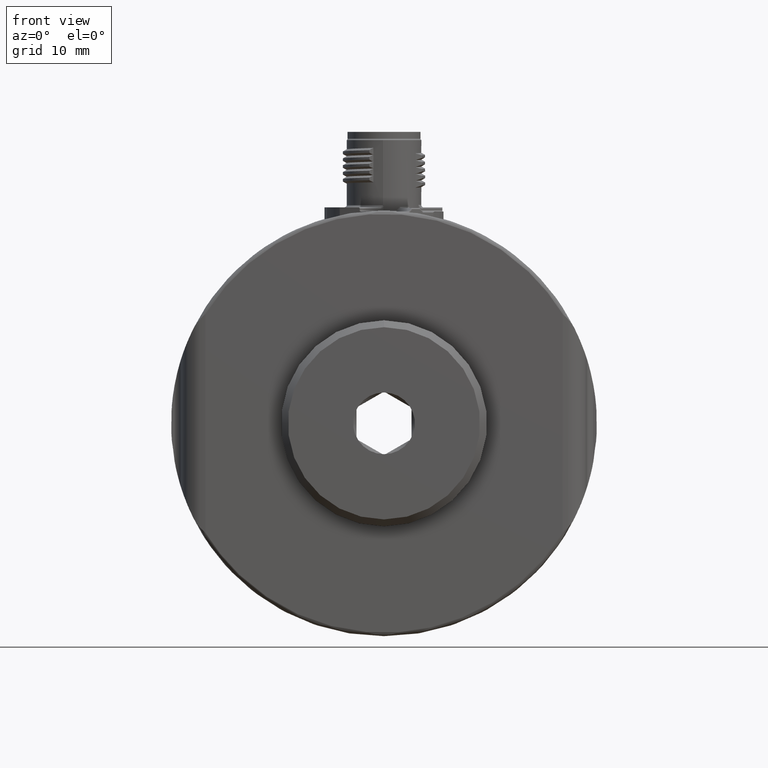
[diagram: clean part render]
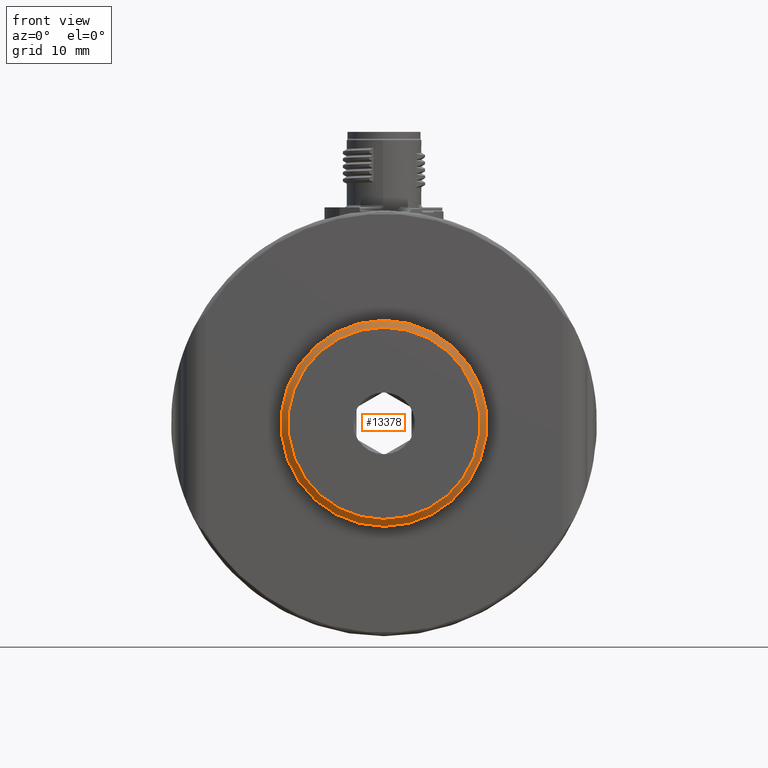
[diagram: same view with one face highlighted and labeled with its STEP entity id]
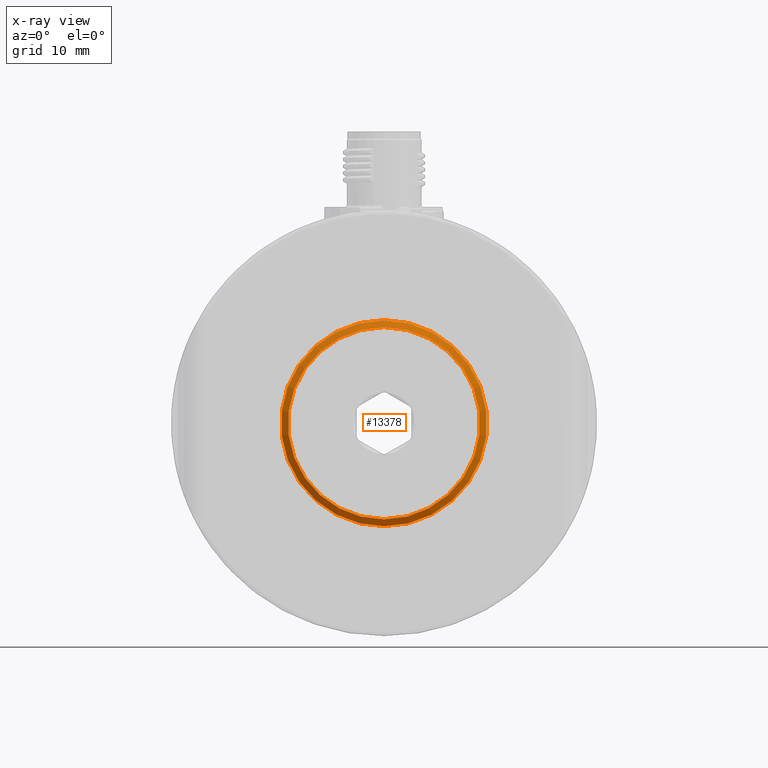
[diagram: x-ray of the same camera — body ghosted, the highlighted face saturated]
A machine part, front view. The second image highlights one B-rep face of the part: STEP entity #13378.
The next image is the same camera in x-ray: the body ghosted, the highlighted face saturated — about 0% of this face is hidden behind the body in this view.
In plain terms, the highlighted conical surface has half-angle 45 deg.
Its self-contained STEP definition (entity closure, byte-faithful):
#812 = VERTEX_POINT ( 'NONE', #7846 ) ;
#879 = DIRECTION ( 'NONE',  ( 0.000000000000000000, 0.000000000000000000, 1.000000000000000000 ) ) ;
#1279 = DIRECTION ( 'NONE',  ( -0.000000000000000000, 1.000000000000000000, 0.000000000000000000 ) ) ;
#1938 = EDGE_LOOP ( 'NONE', ( #14559 ) ) ;
#3206 = AXIS2_PLACEMENT_3D ( 'NONE', #12155, #17883, #879 ) ;
#5507 = DIRECTION ( 'NONE',  ( -0.000000000000000000, 1.000000000000000000, -0.000000000000000000 ) ) ;
#6879 = AXIS2_PLACEMENT_3D ( 'NONE', #7284, #1279, #12740 ) ;
#7115 = CIRCLE ( 'NONE', #3206, 14.00000000000000000 ) ;
#7284 = CARTESIAN_POINT ( 'NONE',  ( 0.000000000000000000, 0.9999999999999954481, 0.000000000000000000 ) ) ;
#7429 = AXIS2_PLACEMENT_3D ( 'NONE', #12561, #5507, #18287 ) ;
#7846 = CARTESIAN_POINT ( 'NONE',  ( 0.000000000000000000, 0.9999999999999835687, -15.00000000000000000 ) ) ;
#7882 = EDGE_LOOP ( 'NONE', ( #10131 ) ) ;
#8894 = EDGE_CURVE ( 'NONE', #18087, #18087, #7115, .T. ) ;
#10131 = ORIENTED_EDGE ( 'NONE', *, *, #10749, .F. ) ;
#10749 = EDGE_CURVE ( 'NONE', #812, #812, #18494, .T. ) ;
#12155 = CARTESIAN_POINT ( 'NONE',  ( 0.000000000000000000, 0.000000000000000000, 0.000000000000000000 ) ) ;
#12561 = CARTESIAN_POINT ( 'NONE',  ( 0.000000000000000000, 0.9999999999999835687, 0.000000000000000000 ) ) ;
#12740 = DIRECTION ( 'NONE',  ( 0.000000000000000000, 0.000000000000000000, 1.000000000000000000 ) ) ;
#13378 = ADVANCED_FACE ( 'NONE', ( #14426, #17334 ), #15576, .T. ) ;
#14426 = FACE_BOUND ( 'NONE', #1938, .T. ) ;
#14559 = ORIENTED_EDGE ( 'NONE', *, *, #8894, .T. ) ;
#15576 = CONICAL_SURFACE ( 'NONE', #6879, 14.99999999999998757, 0.7853981633974440602 ) ;
#16677 = CARTESIAN_POINT ( 'NONE',  ( 0.000000000000000000, 0.000000000000000000, 14.00000000000000000 ) ) ;
#17334 = FACE_OUTER_BOUND ( 'NONE', #7882, .T. ) ;
#17883 = DIRECTION ( 'NONE',  ( -0.000000000000000000, 1.000000000000000000, 0.000000000000000000 ) ) ;
#18087 = VERTEX_POINT ( 'NONE', #16677 ) ;
#18287 = DIRECTION ( 'NONE',  ( 0.000000000000000000, 0.000000000000000000, -1.000000000000000000 ) ) ;
#18494 = CIRCLE ( 'NONE', #7429, 15.00000000000000000 ) ;